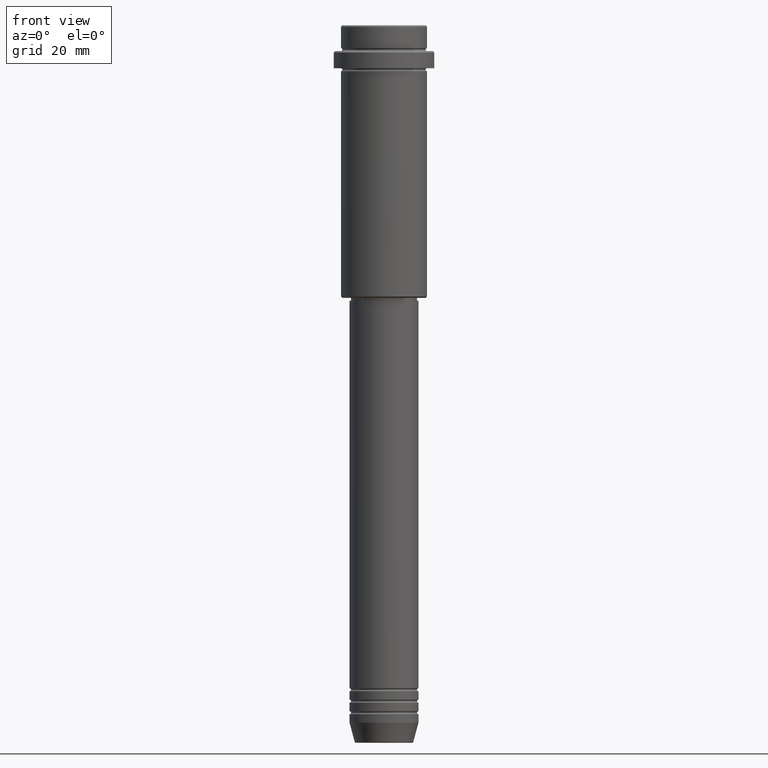
[diagram: clean part render]
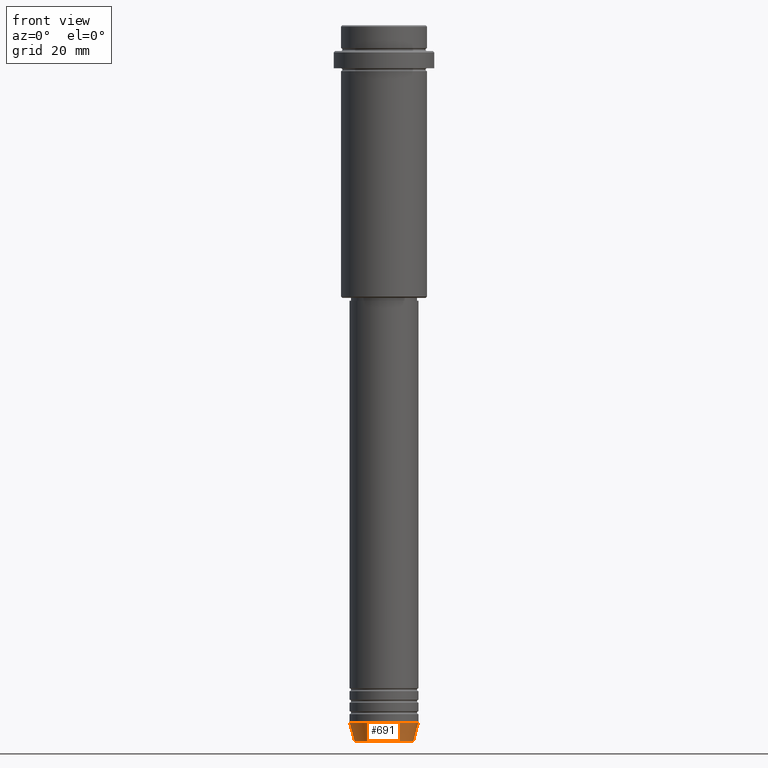
[diagram: same view with one face highlighted and labeled with its STEP entity id]
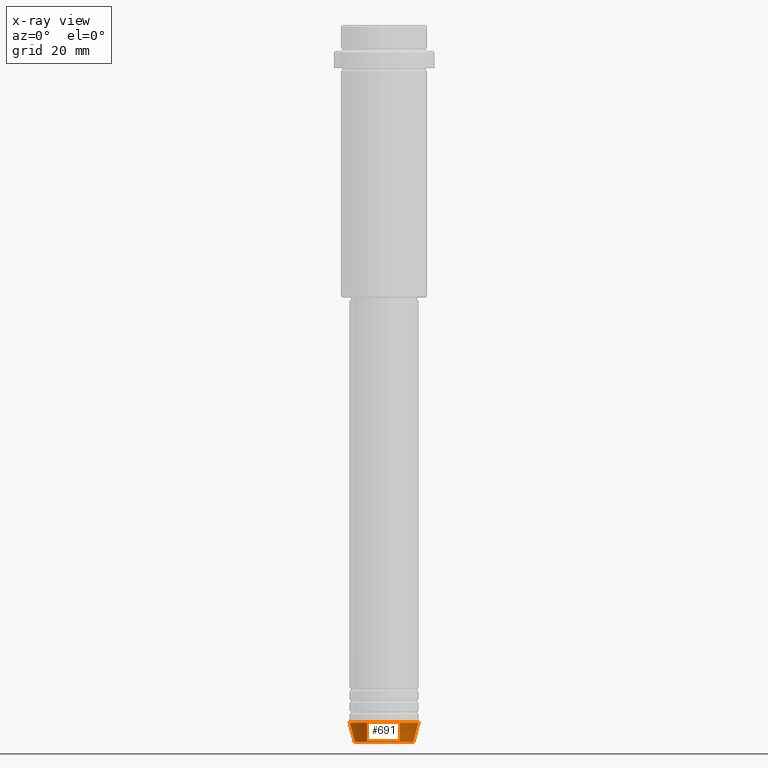
[diagram: x-ray of the same camera — body ghosted, the highlighted face saturated]
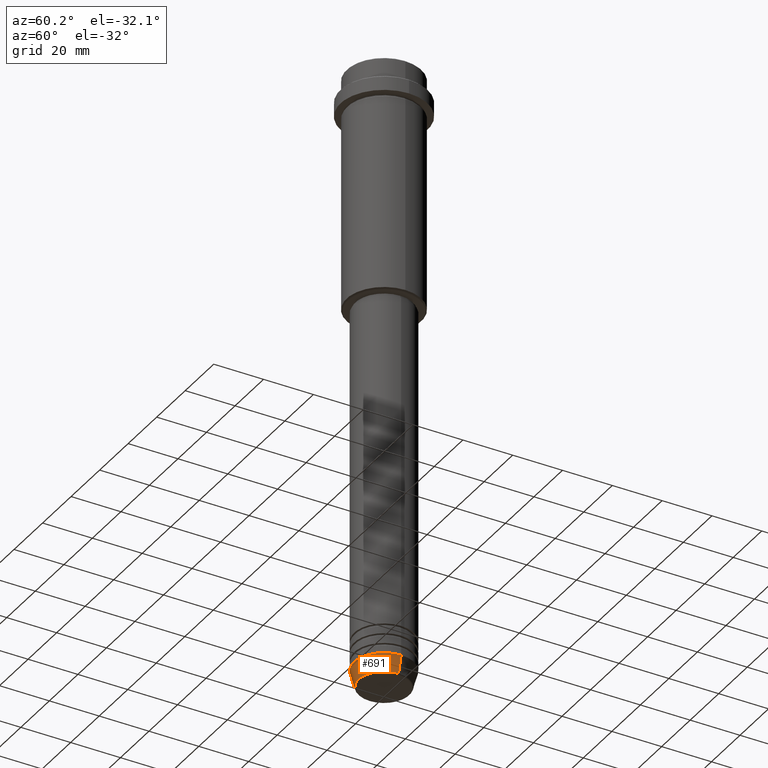
[diagram: same view with one face highlighted and labeled with its STEP entity id]
A machine part, front view. The second image highlights one B-rep face of the part: STEP entity #691.
The next image is the same camera in x-ray: the body ghosted, the highlighted face saturated — about 0% of this face is hidden behind the body in this view.
A second angle (auxiliary view) of the same face is appended — the face is thin or edge-on in the first view.
In plain terms, the highlighted conical surface has half-angle 15 deg.
Its self-contained STEP definition (entity closure, byte-faithful):
#47 = DIRECTION ( 'NONE',  ( 1.000000000000000000, 0.000000000000000000, 0.000000000000000000 ) ) ;
#98 = VERTEX_POINT ( 'NONE', #505 ) ;
#106 = AXIS2_PLACEMENT_3D ( 'NONE', #1020, #1117, #47 ) ;
#178 = VECTOR ( 'NONE', #839, 1000.000000000000000 ) ;
#226 = LINE ( 'NONE', #336, #178 ) ;
#229 = LINE ( 'NONE', #870, #1323 ) ;
#238 = EDGE_CURVE ( 'NONE', #98, #1166, #229, .T. ) ;
#252 = CARTESIAN_POINT ( 'NONE',  ( 0.000000000000000000, 0.000000000000000000, -243.0000000000000000 ) ) ;
#301 = VERTEX_POINT ( 'NONE', #943 ) ;
#335 = CIRCLE ( 'NONE', #357, 10.22365507213719127 ) ;
#336 = CARTESIAN_POINT ( 'NONE',  ( 12.00000000000000000, 0.000000000000000000, -243.0000000000000000 ) ) ;
#340 = CARTESIAN_POINT ( 'NONE',  ( -12.00000000000000000, 1.469576158976823947E-15, -243.0000000000000000 ) ) ;
#357 = AXIS2_PLACEMENT_3D ( 'NONE', #1232, #895, #696 ) ;
#361 = ORIENTED_EDGE ( 'NONE', *, *, #1148, .F. ) ;
#505 = CARTESIAN_POINT ( 'NONE',  ( -10.22365507213719127, 1.360806402472382744E-15, -249.6294095225512422 ) ) ;
#534 = VERTEX_POINT ( 'NONE', #756 ) ;
#573 = DIRECTION ( 'NONE',  ( 1.000000000000000000, 0.000000000000000000, 0.000000000000000000 ) ) ;
#574 = FACE_OUTER_BOUND ( 'NONE', #739, .T. ) ;
#691 = ADVANCED_FACE ( 'NONE', ( #574 ), #1116, .T. ) ;
#696 = DIRECTION ( 'NONE',  ( 1.000000000000000000, 0.000000000000000000, 0.000000000000000000 ) ) ;
#739 = EDGE_LOOP ( 'NONE', ( #1180, #1201, #1332, #361 ) ) ;
#756 = CARTESIAN_POINT ( 'NONE',  ( 12.00000000000000000, 0.000000000000000000, -243.0000000000000000 ) ) ;
#839 = DIRECTION ( 'NONE',  ( 0.2588190451025213501, 0.000000000000000000, 0.9659258262890680902 ) ) ;
#870 = CARTESIAN_POINT ( 'NONE',  ( -12.00000000000000000, 1.469576158976823947E-15, -243.0000000000000000 ) ) ;
#895 = DIRECTION ( 'NONE',  ( -0.000000000000000000, -0.000000000000000000, 1.000000000000000000 ) ) ;
#943 = CARTESIAN_POINT ( 'NONE',  ( 10.22365507213719127, 0.000000000000000000, -249.6294095225512422 ) ) ;
#976 = EDGE_CURVE ( 'NONE', #301, #534, #226, .T. ) ;
#1020 = CARTESIAN_POINT ( 'NONE',  ( 0.000000000000000000, 0.000000000000000000, -243.0000000000000000 ) ) ;
#1049 = EDGE_CURVE ( 'NONE', #98, #301, #335, .T. ) ;
#1104 = DIRECTION ( 'NONE',  ( -0.2588190451025213501, 3.169619151431772337E-17, 0.9659258262890680902 ) ) ;
#1116 = CONICAL_SURFACE ( 'NONE', #106, 12.00000000000000000, 0.2617993877991500740 ) ;
#1117 = DIRECTION ( 'NONE',  ( -0.000000000000000000, -0.000000000000000000, 1.000000000000000000 ) ) ;
#1148 = EDGE_CURVE ( 'NONE', #1166, #534, #1350, .T. ) ;
#1166 = VERTEX_POINT ( 'NONE', #340 ) ;
#1180 = ORIENTED_EDGE ( 'NONE', *, *, #238, .F. ) ;
#1201 = ORIENTED_EDGE ( 'NONE', *, *, #1049, .T. ) ;
#1232 = CARTESIAN_POINT ( 'NONE',  ( 0.000000000000000000, 0.000000000000000000, -249.6294095225512422 ) ) ;
#1245 = DIRECTION ( 'NONE',  ( -0.000000000000000000, -0.000000000000000000, 1.000000000000000000 ) ) ;
#1323 = VECTOR ( 'NONE', #1104, 1000.000000000000000 ) ;
#1332 = ORIENTED_EDGE ( 'NONE', *, *, #976, .T. ) ;
#1350 = CIRCLE ( 'NONE', #1367, 12.00000000000000000 ) ;
#1367 = AXIS2_PLACEMENT_3D ( 'NONE', #252, #1245, #573 ) ;